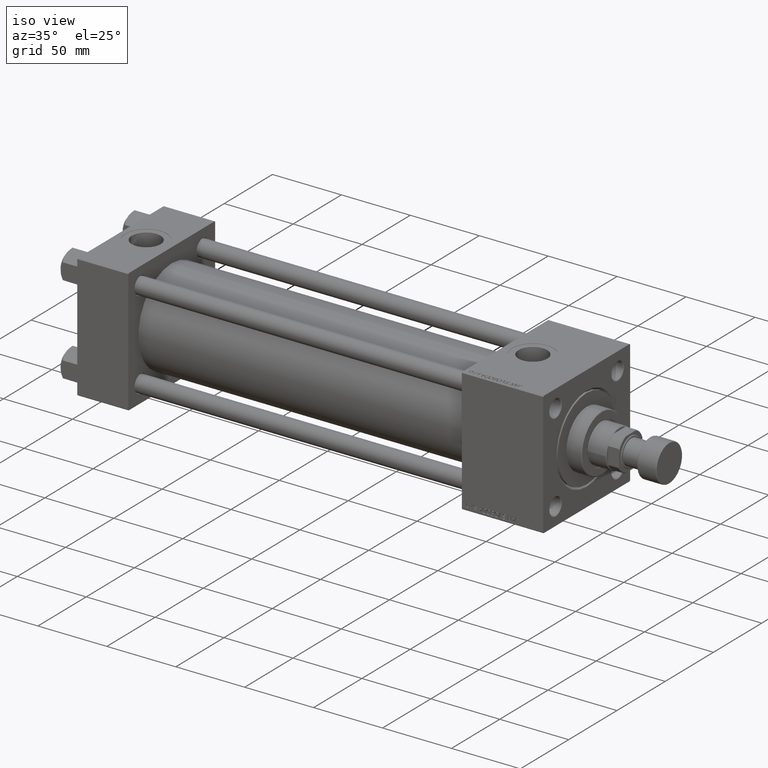
[diagram: clean part render]
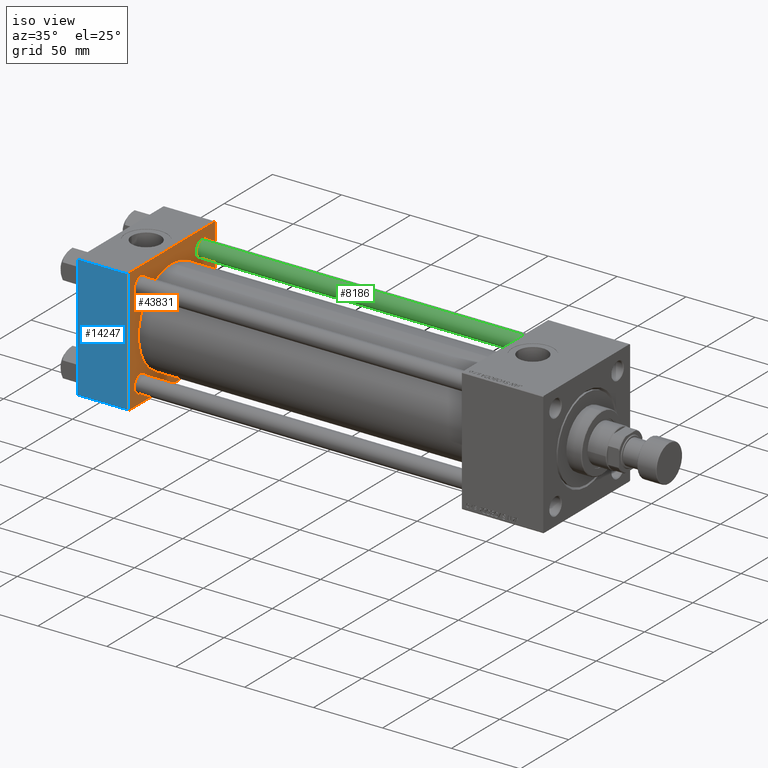
[diagram: same view with three faces highlighted in distinct colors, each labeled with its STEP entity id]
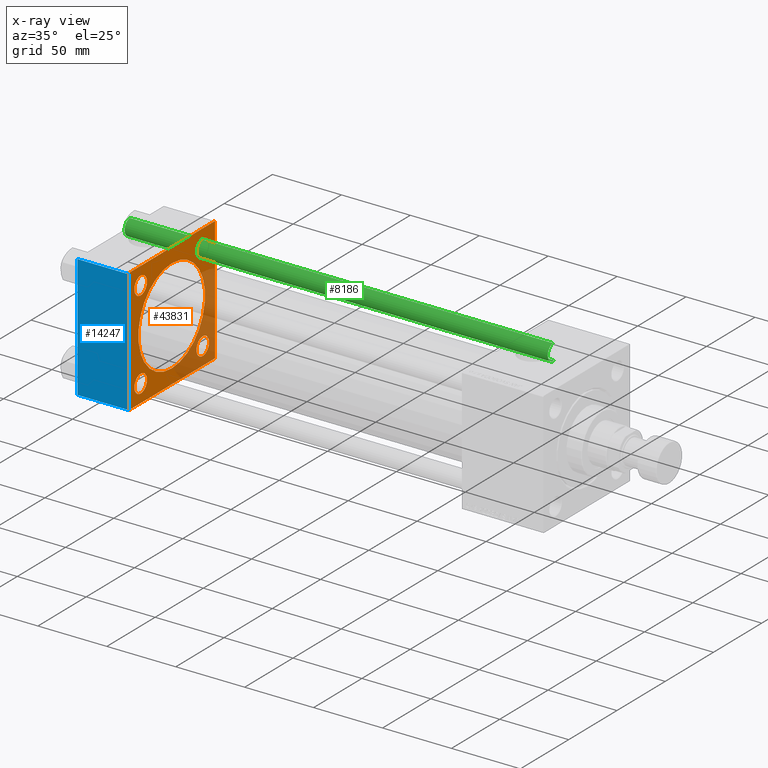
[diagram: x-ray of the same camera — body ghosted, the three highlighted faces saturated]
A machine part, iso view with three faces highlighted in distinct colors.
The next image is the same camera in x-ray (body ghosted, the three faces saturated) — at least one of them is partly hidden behind the body in this view.
Their STEP definitions:

[orange] entity #43831 — the highlighted planar face has unit normal (-1, 0, 0).
#5 = CARTESIAN_POINT ( 'NONE',  ( 37.00000000000000000, 32.14999999999999147, 25.65000000000002700 ) ) ;
#51 = DIRECTION ( 'NONE',  ( 1.000000000000000000, -0.000000000000000000, 0.000000000000000000 ) ) ;
#752 = VECTOR ( 'NONE', #18571, 1000.000000000000000 ) ;
#1021 = CIRCLE ( 'NONE', #39390, 6.499999999999977796 ) ;
#1183 = CARTESIAN_POINT ( 'NONE',  ( 37.00000000000000000, 32.14999999999999147, -32.15000000000000568 ) ) ;
#1648 = DIRECTION ( 'NONE',  ( -1.000000000000000000, 0.000000000000000000, -0.000000000000000000 ) ) ;
#2131 = DIRECTION ( 'NONE',  ( -1.000000000000000000, 0.000000000000000000, -0.000000000000000000 ) ) ;
#2388 = EDGE_CURVE ( 'NONE', #17870, #33335, #25803, .T. ) ;
#2611 = AXIS2_PLACEMENT_3D ( 'NONE', #35283, #8484, #23008 ) ;
#3019 = ORIENTED_EDGE ( 'NONE', *, *, #7058, .T. ) ;
#3759 = EDGE_CURVE ( 'NONE', #4550, #30125, #5063, .T. ) ;
#3771 = DIRECTION ( 'NONE',  ( 0.000000000000000000, -0.7071067811865474617, 0.7071067811865474617 ) ) ;
#4025 = CARTESIAN_POINT ( 'NONE',  ( 37.00000000000000000, -45.00000000000000711, 44.49999999999997158 ) ) ;
#4340 = FACE_BOUND ( 'NONE', #21590, .T. ) ;
#4550 = VERTEX_POINT ( 'NONE', #5 ) ;
#5063 = CIRCLE ( 'NONE', #34873, 6.499999999999977796 ) ;
#5167 = VERTEX_POINT ( 'NONE', #20835 ) ;
#5248 = CIRCLE ( 'NONE', #37679, 34.50000000000000000 ) ;
#5287 = CARTESIAN_POINT ( 'NONE',  ( 37.00000000000000000, 44.99999999999998579, -44.49999999999995737 ) ) ;
#5572 = LINE ( 'NONE', #34901, #27666 ) ;
#6142 = VECTOR ( 'NONE', #45239, 1000.000000000000000 ) ;
#6192 = VECTOR ( 'NONE', #3771, 1000.000000000000114 ) ;
#6536 = VERTEX_POINT ( 'NONE', #46031 ) ;
#6614 = EDGE_LOOP ( 'NONE', ( #22205, #36501 ) ) ;
#7058 = EDGE_CURVE ( 'NONE', #24643, #17996, #41820, .T. ) ;
#8366 = DIRECTION ( 'NONE',  ( -1.000000000000000000, 0.000000000000000000, -0.000000000000000000 ) ) ;
#8484 = DIRECTION ( 'NONE',  ( -1.000000000000000000, 0.000000000000000000, -0.000000000000000000 ) ) ;
#8943 = AXIS2_PLACEMENT_3D ( 'NONE', #18690, #39513, #22705 ) ;
#9079 = DIRECTION ( 'NONE',  ( 0.000000000000000000, 0.000000000000000000, 1.000000000000000000 ) ) ;
#10045 = CARTESIAN_POINT ( 'NONE',  ( 37.00000000000000000, 32.14999999999999147, -38.64999999999998437 ) ) ;
#11977 = DIRECTION ( 'NONE',  ( -0.000000000000000000, 0.000000000000000000, 1.000000000000000000 ) ) ;
#11982 = EDGE_CURVE ( 'NONE', #29960, #48354, #16563, .T. ) ;
#12205 = CARTESIAN_POINT ( 'NONE',  ( 37.00000000000000000, -44.49999999999998579, -45.00000000000000000 ) ) ;
#12347 = FACE_OUTER_BOUND ( 'NONE', #25270, .T. ) ;
#12663 = LINE ( 'NONE', #28969, #6142 ) ;
#13080 = DIRECTION ( 'NONE',  ( 1.000000000000000000, -0.000000000000000000, 0.000000000000000000 ) ) ;
#13205 = ORIENTED_EDGE ( 'NONE', *, *, #11982, .T. ) ;
#13905 = EDGE_CURVE ( 'NONE', #29960, #22339, #12663, .T. ) ;
#14042 = CARTESIAN_POINT ( 'NONE',  ( 37.00000000000000000, 44.99999999999998579, 45.00000000000001421 ) ) ;
#14855 = CARTESIAN_POINT ( 'NONE',  ( 37.00000000000000000, 32.14999999999999147, 32.15000000000000568 ) ) ;
#15314 = EDGE_CURVE ( 'NONE', #17996, #24643, #40301, .T. ) ;
#15568 = AXIS2_PLACEMENT_3D ( 'NONE', #29909, #2131, #42685 ) ;
#16327 = CARTESIAN_POINT ( 'NONE',  ( 37.00000000000000000, -44.49999999999995737, 45.00000000000000000 ) ) ;
#16563 = LINE ( 'NONE', #33636, #34197 ) ;
#17093 = LINE ( 'NONE', #4025, #20530 ) ;
#17216 = VERTEX_POINT ( 'NONE', #20755 ) ;
#17416 = FACE_BOUND ( 'NONE', #52543, .T. ) ;
#17432 = AXIS2_PLACEMENT_3D ( 'NONE', #1183, #26250, #26513 ) ;
#17870 = VERTEX_POINT ( 'NONE', #51264 ) ;
#17996 = VERTEX_POINT ( 'NONE', #30736 ) ;
#18523 = ORIENTED_EDGE ( 'NONE', *, *, #3759, .T. ) ;
#18571 = DIRECTION ( 'NONE',  ( 0.000000000000000000, -1.000000000000000000, -1.541976423090495387E-16 ) ) ;
#18690 = CARTESIAN_POINT ( 'NONE',  ( 37.00000000000000000, 32.14999999999999147, -32.15000000000000568 ) ) ;
#18708 = ORIENTED_EDGE ( 'NONE', *, *, #34707, .F. ) ;
#18930 = CIRCLE ( 'NONE', #30855, 6.499999999999977796 ) ;
#19056 = VERTEX_POINT ( 'NONE', #43825 ) ;
#20067 = CARTESIAN_POINT ( 'NONE',  ( 37.00000000000000000, -44.49999999999995737, -45.00000000000000000 ) ) ;
#20530 = VECTOR ( 'NONE', #32855, 1000.000000000000114 ) ;
#20755 = CARTESIAN_POINT ( 'NONE',  ( 37.00000000000000000, -45.00000000000000711, 44.49999999999997158 ) ) ;
#20835 = CARTESIAN_POINT ( 'NONE',  ( 37.00000000000000711, 1.622946243093158675E-15, -34.50000000000000000 ) ) ;
#21590 = EDGE_LOOP ( 'NONE', ( #45446, #26808 ) ) ;
#21694 = DIRECTION ( 'NONE',  ( 0.000000000000000000, 7.709882115452476934E-17, -1.000000000000000000 ) ) ;
#22205 = ORIENTED_EDGE ( 'NONE', *, *, #45624, .F. ) ;
#22339 = VERTEX_POINT ( 'NONE', #20067 ) ;
#22705 = DIRECTION ( 'NONE',  ( 0.000000000000000000, 0.000000000000000000, 1.000000000000000000 ) ) ;
#22727 = VERTEX_POINT ( 'NONE', #10045 ) ;
#23008 = DIRECTION ( 'NONE',  ( 0.000000000000000000, 0.000000000000000000, 1.000000000000000000 ) ) ;
#23410 = DIRECTION ( 'NONE',  ( 0.000000000000000000, 0.000000000000000000, 1.000000000000000000 ) ) ;
#23816 = CARTESIAN_POINT ( 'NONE',  ( 37.00000000000000711, -2.602085213965210642E-15, 0.000000000000000000 ) ) ;
#24063 = ORIENTED_EDGE ( 'NONE', *, *, #40798, .T. ) ;
#24225 = CARTESIAN_POINT ( 'NONE',  ( 37.00000000000000000, -45.00000000000000000, -44.49999999999995737 ) ) ;
#24643 = VERTEX_POINT ( 'NONE', #39326 ) ;
#24652 = DIRECTION ( 'NONE',  ( 0.000000000000000000, 0.000000000000000000, 1.000000000000000000 ) ) ;
#25269 = CARTESIAN_POINT ( 'NONE',  ( 37.00000000000000000, -32.14999999999997726, -38.64999999999999147 ) ) ;
#25270 = EDGE_LOOP ( 'NONE', ( #51239, #13205, #18708, #51159, #27081, #45213, #45818, #24063 ) ) ;
#25803 = LINE ( 'NONE', #14042, #752 ) ;
#26250 = DIRECTION ( 'NONE',  ( -1.000000000000000000, 0.000000000000000000, -0.000000000000000000 ) ) ;
#26339 = EDGE_CURVE ( 'NONE', #33335, #17216, #17093, .T. ) ;
#26513 = DIRECTION ( 'NONE',  ( 0.000000000000000000, 0.000000000000000000, 1.000000000000000000 ) ) ;
#26808 = ORIENTED_EDGE ( 'NONE', *, *, #29791, .T. ) ;
#26871 = DIRECTION ( 'NONE',  ( -1.000000000000000000, 0.000000000000000000, -0.000000000000000000 ) ) ;
#26919 = VECTOR ( 'NONE', #41038, 1000.000000000000114 ) ;
#27081 = ORIENTED_EDGE ( 'NONE', *, *, #2388, .T. ) ;
#27395 = CARTESIAN_POINT ( 'NONE',  ( 37.00000000000000711, -2.602085213965210642E-15, 34.50000000000000000 ) ) ;
#27504 = PLANE ( 'NONE',  #52580 ) ;
#27660 = AXIS2_PLACEMENT_3D ( 'NONE', #23816, #51, #28356 ) ;
#27666 = VECTOR ( 'NONE', #51179, 1000.000000000000000 ) ;
#27927 = VERTEX_POINT ( 'NONE', #24225 ) ;
#28058 = LINE ( 'NONE', #44859, #6192 ) ;
#28274 = CIRCLE ( 'NONE', #51262, 6.499999999999977796 ) ;
#28356 = DIRECTION ( 'NONE',  ( 0.000000000000000000, 0.000000000000000000, 1.000000000000000000 ) ) ;
#28834 = ORIENTED_EDGE ( 'NONE', *, *, #39173, .T. ) ;
#28969 = CARTESIAN_POINT ( 'NONE',  ( 37.00000000000000000, 44.99999999999998579, -44.99999999999998579 ) ) ;
#29077 = DIRECTION ( 'NONE',  ( -1.000000000000000000, 0.000000000000000000, -0.000000000000000000 ) ) ;
#29176 = CARTESIAN_POINT ( 'NONE',  ( 37.00000000000000000, -45.00000000000000711, 45.00000000000000000 ) ) ;
#29287 = VERTEX_POINT ( 'NONE', #27395 ) ;
#29470 = CARTESIAN_POINT ( 'NONE',  ( 37.00000000000000000, -32.14999999999997726, -32.15000000000001279 ) ) ;
#29777 = EDGE_CURVE ( 'NONE', #17216, #27927, #37707, .T. ) ;
#29791 = EDGE_CURVE ( 'NONE', #6536, #41704, #18930, .T. ) ;
#29909 = CARTESIAN_POINT ( 'NONE',  ( 37.00000000000000000, -32.14999999999997726, 32.15000000000001279 ) ) ;
#29960 = VERTEX_POINT ( 'NONE', #31019 ) ;
#30125 = VERTEX_POINT ( 'NONE', #44594 ) ;
#30172 = EDGE_CURVE ( 'NONE', #19056, #17870, #28058, .T. ) ;
#30736 = CARTESIAN_POINT ( 'NONE',  ( 37.00000000000000000, -32.14999999999997726, 38.64999999999999147 ) ) ;
#30855 = AXIS2_PLACEMENT_3D ( 'NONE', #45707, #1648, #49702 ) ;
#31019 = CARTESIAN_POINT ( 'NONE',  ( 37.00000000000000000, 44.49999999999998579, -44.99999999999998579 ) ) ;
#32794 = CIRCLE ( 'NONE', #8943, 6.499999999999977796 ) ;
#32855 = DIRECTION ( 'NONE',  ( -0.000000000000000000, -0.7071067811865425767, -0.7071067811865524577 ) ) ;
#33135 = ORIENTED_EDGE ( 'NONE', *, *, #38640, .T. ) ;
#33335 = VERTEX_POINT ( 'NONE', #16327 ) ;
#33441 = FACE_BOUND ( 'NONE', #36215, .T. ) ;
#33636 = CARTESIAN_POINT ( 'NONE',  ( 37.00000000000000000, 44.99999999999998579, -44.49999999999998579 ) ) ;
#34197 = VECTOR ( 'NONE', #49898, 1000.000000000000114 ) ;
#34707 = EDGE_CURVE ( 'NONE', #19056, #48354, #5572, .T. ) ;
#34873 = AXIS2_PLACEMENT_3D ( 'NONE', #45083, #29077, #45354 ) ;
#34901 = CARTESIAN_POINT ( 'NONE',  ( 37.00000000000000000, 44.99999999999998579, 45.00000000000001421 ) ) ;
#35283 = CARTESIAN_POINT ( 'NONE',  ( 37.00000000000000000, -32.14999999999997726, 32.15000000000001279 ) ) ;
#36181 = CIRCLE ( 'NONE', #27660, 34.50000000000000000 ) ;
#36215 = EDGE_LOOP ( 'NONE', ( #33135, #28834 ) ) ;
#36501 = ORIENTED_EDGE ( 'NONE', *, *, #37988, .F. ) ;
#36811 = DIRECTION ( 'NONE',  ( -1.000000000000000000, 0.000000000000000000, -0.000000000000000000 ) ) ;
#37679 = AXIS2_PLACEMENT_3D ( 'NONE', #45646, #13080, #9079 ) ;
#37707 = LINE ( 'NONE', #29176, #51292 ) ;
#37988 = EDGE_CURVE ( 'NONE', #5167, #29287, #36181, .T. ) ;
#37999 = ORIENTED_EDGE ( 'NONE', *, *, #45833, .T. ) ;
#38640 = EDGE_CURVE ( 'NONE', #22727, #41940, #32794, .T. ) ;
#39173 = EDGE_CURVE ( 'NONE', #41940, #22727, #51521, .T. ) ;
#39326 = CARTESIAN_POINT ( 'NONE',  ( 37.00000000000000000, -32.14999999999997726, 25.65000000000003411 ) ) ;
#39390 = AXIS2_PLACEMENT_3D ( 'NONE', #29470, #8366, #24652 ) ;
#39513 = DIRECTION ( 'NONE',  ( -1.000000000000000000, 0.000000000000000000, -0.000000000000000000 ) ) ;
#40027 = CARTESIAN_POINT ( 'NONE',  ( 37.00000000000000000, 0.000000000000000000, 0.000000000000000000 ) ) ;
#40301 = CIRCLE ( 'NONE', #15568, 6.499999999999977796 ) ;
#40798 = EDGE_CURVE ( 'NONE', #27927, #22339, #45034, .T. ) ;
#41038 = DIRECTION ( 'NONE',  ( 0.000000000000000000, 0.7071067811865474617, -0.7071067811865474617 ) ) ;
#41704 = VERTEX_POINT ( 'NONE', #25269 ) ;
#41820 = CIRCLE ( 'NONE', #2611, 6.499999999999977796 ) ;
#41940 = VERTEX_POINT ( 'NONE', #48960 ) ;
#42685 = DIRECTION ( 'NONE',  ( 0.000000000000000000, 0.000000000000000000, 1.000000000000000000 ) ) ;
#43825 = CARTESIAN_POINT ( 'NONE',  ( 37.00000000000000000, 44.99999999999998579, 44.50000000000001421 ) ) ;
#43831 = ADVANCED_FACE ( 'NONE', ( #4340, #33441, #45706, #17416, #48921, #12347 ), #27504, .F. ) ;
#44152 = ORIENTED_EDGE ( 'NONE', *, *, #15314, .T. ) ;
#44594 = CARTESIAN_POINT ( 'NONE',  ( 37.00000000000000000, 32.14999999999999147, 38.64999999999998437 ) ) ;
#44859 = CARTESIAN_POINT ( 'NONE',  ( 37.00000000000000000, 44.49999999999998579, 45.00000000000001421 ) ) ;
#45034 = LINE ( 'NONE', #12205, #26919 ) ;
#45083 = CARTESIAN_POINT ( 'NONE',  ( 37.00000000000000000, 32.14999999999999147, 32.15000000000000568 ) ) ;
#45213 = ORIENTED_EDGE ( 'NONE', *, *, #26339, .T. ) ;
#45239 = DIRECTION ( 'NONE',  ( 0.000000000000000000, -1.000000000000000000, -1.541976423090495633E-16 ) ) ;
#45300 = EDGE_LOOP ( 'NONE', ( #3019, #44152 ) ) ;
#45354 = DIRECTION ( 'NONE',  ( 0.000000000000000000, 0.000000000000000000, 1.000000000000000000 ) ) ;
#45446 = ORIENTED_EDGE ( 'NONE', *, *, #50150, .T. ) ;
#45624 = EDGE_CURVE ( 'NONE', #29287, #5167, #5248, .T. ) ;
#45646 = CARTESIAN_POINT ( 'NONE',  ( 37.00000000000000711, -2.602085213965210642E-15, 0.000000000000000000 ) ) ;
#45706 = FACE_BOUND ( 'NONE', #45300, .T. ) ;
#45707 = CARTESIAN_POINT ( 'NONE',  ( 37.00000000000000000, -32.14999999999997726, -32.15000000000001279 ) ) ;
#45818 = ORIENTED_EDGE ( 'NONE', *, *, #29777, .T. ) ;
#45833 = EDGE_CURVE ( 'NONE', #30125, #4550, #28274, .T. ) ;
#46031 = CARTESIAN_POINT ( 'NONE',  ( 37.00000000000000000, -32.14999999999997726, -25.65000000000003411 ) ) ;
#48354 = VERTEX_POINT ( 'NONE', #5287 ) ;
#48921 = FACE_BOUND ( 'NONE', #6614, .T. ) ;
#48960 = CARTESIAN_POINT ( 'NONE',  ( 37.00000000000000000, 32.14999999999999147, -25.65000000000002700 ) ) ;
#49702 = DIRECTION ( 'NONE',  ( 0.000000000000000000, 0.000000000000000000, 1.000000000000000000 ) ) ;
#49898 = DIRECTION ( 'NONE',  ( -0.000000000000000000, 0.7071067811865474617, 0.7071067811865474617 ) ) ;
#50150 = EDGE_CURVE ( 'NONE', #41704, #6536, #1021, .T. ) ;
#51159 = ORIENTED_EDGE ( 'NONE', *, *, #30172, .T. ) ;
#51179 = DIRECTION ( 'NONE',  ( 0.000000000000000000, 0.000000000000000000, -1.000000000000000000 ) ) ;
#51239 = ORIENTED_EDGE ( 'NONE', *, *, #13905, .F. ) ;
#51262 = AXIS2_PLACEMENT_3D ( 'NONE', #14855, #26871, #23410 ) ;
#51264 = CARTESIAN_POINT ( 'NONE',  ( 37.00000000000000000, 44.49999999999998579, 45.00000000000001421 ) ) ;
#51292 = VECTOR ( 'NONE', #21694, 1000.000000000000000 ) ;
#51521 = CIRCLE ( 'NONE', #17432, 6.499999999999977796 ) ;
#52543 = EDGE_LOOP ( 'NONE', ( #18523, #37999 ) ) ;
#52580 = AXIS2_PLACEMENT_3D ( 'NONE', #40027, #36811, #11977 ) ;

[blue] entity #14247 — the highlighted planar face has unit normal (0, 1, 0).
#1090 = CARTESIAN_POINT ( 'NONE',  ( 0.000000000000000000, -45.00000000000000000, -44.49999999999995737 ) ) ;
#3436 = DIRECTION ( 'NONE',  ( 0.000000000000000000, 7.709882115452476934E-17, -1.000000000000000000 ) ) ;
#3637 = EDGE_CURVE ( 'NONE', #17216, #11527, #21918, .T. ) ;
#3819 = ORIENTED_EDGE ( 'NONE', *, *, #29777, .F. ) ;
#5881 = DIRECTION ( 'NONE',  ( -1.000000000000000000, 0.000000000000000000, 0.000000000000000000 ) ) ;
#8473 = VECTOR ( 'NONE', #9610, 1000.000000000000000 ) ;
#9610 = DIRECTION ( 'NONE',  ( 1.000000000000000000, 0.000000000000000000, 0.000000000000000000 ) ) ;
#10464 = EDGE_CURVE ( 'NONE', #11527, #23276, #39753, .T. ) ;
#11527 = VERTEX_POINT ( 'NONE', #26999 ) ;
#11857 = VECTOR ( 'NONE', #5881, 1000.000000000000000 ) ;
#14139 = LINE ( 'NONE', #18670, #8473 ) ;
#14247 = ADVANCED_FACE ( 'NONE', ( #26211 ), #38213, .F. ) ;
#14421 = CARTESIAN_POINT ( 'NONE',  ( 37.00000000000000000, -45.00000000000000711, 44.49999999999997158 ) ) ;
#17216 = VERTEX_POINT ( 'NONE', #20755 ) ;
#18670 = CARTESIAN_POINT ( 'NONE',  ( 37.00000000000000000, -45.00000000000000000, -44.49999999999998579 ) ) ;
#19203 = CARTESIAN_POINT ( 'NONE',  ( 0.000000000000000000, -45.00000000000000711, 45.00000000000000000 ) ) ;
#20755 = CARTESIAN_POINT ( 'NONE',  ( 37.00000000000000000, -45.00000000000000711, 44.49999999999997158 ) ) ;
#21694 = DIRECTION ( 'NONE',  ( 0.000000000000000000, 7.709882115452476934E-17, -1.000000000000000000 ) ) ;
#21918 = LINE ( 'NONE', #14421, #11857 ) ;
#22432 = EDGE_CURVE ( 'NONE', #23276, #27927, #14139, .T. ) ;
#23276 = VERTEX_POINT ( 'NONE', #1090 ) ;
#24225 = CARTESIAN_POINT ( 'NONE',  ( 37.00000000000000000, -45.00000000000000000, -44.49999999999995737 ) ) ;
#25956 = DIRECTION ( 'NONE',  ( 0.000000000000000000, -7.709882115452478166E-17, 1.000000000000000000 ) ) ;
#26211 = FACE_OUTER_BOUND ( 'NONE', #52712, .T. ) ;
#26999 = CARTESIAN_POINT ( 'NONE',  ( 0.000000000000000000, -45.00000000000000711, 44.49999999999997158 ) ) ;
#27927 = VERTEX_POINT ( 'NONE', #24225 ) ;
#29176 = CARTESIAN_POINT ( 'NONE',  ( 37.00000000000000000, -45.00000000000000711, 45.00000000000000000 ) ) ;
#29777 = EDGE_CURVE ( 'NONE', #17216, #27927, #37707, .T. ) ;
#34961 = ORIENTED_EDGE ( 'NONE', *, *, #22432, .T. ) ;
#37707 = LINE ( 'NONE', #29176, #51292 ) ;
#37880 = ORIENTED_EDGE ( 'NONE', *, *, #10464, .T. ) ;
#38213 = PLANE ( 'NONE',  #49616 ) ;
#39753 = LINE ( 'NONE', #19203, #41813 ) ;
#41813 = VECTOR ( 'NONE', #3436, 1000.000000000000000 ) ;
#45348 = ORIENTED_EDGE ( 'NONE', *, *, #3637, .T. ) ;
#45705 = DIRECTION ( 'NONE',  ( -0.000000000000000000, 1.000000000000000000, 7.709882115452478166E-17 ) ) ;
#46488 = CARTESIAN_POINT ( 'NONE',  ( 37.00000000000000000, -45.00000000000000711, 45.00000000000000000 ) ) ;
#49616 = AXIS2_PLACEMENT_3D ( 'NONE', #46488, #45705, #25956 ) ;
#51292 = VECTOR ( 'NONE', #21694, 1000.000000000000000 ) ;
#52712 = EDGE_LOOP ( 'NONE', ( #37880, #34961, #3819, #45348 ) ) ;

[green] entity #8186 — the highlighted cylindrical surface (edge-blend (fillet) strip) has radius 6 mm, axis along (-1, 0, 0).
#418 = EDGE_CURVE ( 'NONE', #16432, #20371, #40370, .T. ) ;
#3274 = CARTESIAN_POINT ( 'NONE',  ( 6.000000000000000888, 7.347880794884120722E-16, 308.0000000000000000 ) ) ;
#4070 = ORIENTED_EDGE ( 'NONE', *, *, #34052, .T. ) ;
#4710 = VECTOR ( 'NONE', #14758, 1000.000000000000000 ) ;
#6060 = EDGE_CURVE ( 'NONE', #25706, #16432, #12777, .T. ) ;
#8186 = ADVANCED_FACE ( 'NONE', ( #25872 ), #8797, .T. ) ;
#8797 = CYLINDRICAL_SURFACE ( 'NONE', #42691, 6.000000000000000888 ) ;
#9060 = DIRECTION ( 'NONE',  ( -1.000000000000000000, 0.000000000000000000, 0.000000000000000000 ) ) ;
#9577 = CARTESIAN_POINT ( 'NONE',  ( 0.000000000000000000, 0.000000000000000000, 308.0000000000000000 ) ) ;
#12777 = CIRCLE ( 'NONE', #32415, 6.000000000000000888 ) ;
#13498 = CARTESIAN_POINT ( 'NONE',  ( -6.000000000000000888, 0.000000000000000000, 307.4999999999999432 ) ) ;
#14758 = DIRECTION ( 'NONE',  ( -0.000000000000000000, -0.000000000000000000, -1.000000000000000000 ) ) ;
#15943 = DIRECTION ( 'NONE',  ( -0.000000000000000000, -0.000000000000000000, 1.000000000000000000 ) ) ;
#16432 = VERTEX_POINT ( 'NONE', #13498 ) ;
#17458 = DIRECTION ( 'NONE',  ( 1.000000000000000000, 0.000000000000000000, 0.000000000000000000 ) ) ;
#19362 = ORIENTED_EDGE ( 'NONE', *, *, #39313, .F. ) ;
#19990 = DIRECTION ( 'NONE',  ( 0.000000000000000000, 0.000000000000000000, -1.000000000000000000 ) ) ;
#20337 = DIRECTION ( 'NONE',  ( -0.000000000000000000, -0.000000000000000000, -1.000000000000000000 ) ) ;
#20371 = VERTEX_POINT ( 'NONE', #40807 ) ;
#20436 = ORIENTED_EDGE ( 'NONE', *, *, #6060, .T. ) ;
#20794 = AXIS2_PLACEMENT_3D ( 'NONE', #49476, #15943, #17458 ) ;
#25706 = VERTEX_POINT ( 'NONE', #51733 ) ;
#25872 = FACE_OUTER_BOUND ( 'NONE', #29755, .T. ) ;
#26963 = ORIENTED_EDGE ( 'NONE', *, *, #418, .T. ) ;
#28087 = CARTESIAN_POINT ( 'NONE',  ( -6.000000000000000888, 0.000000000000000000, 308.0000000000000000 ) ) ;
#28519 = DIRECTION ( 'NONE',  ( 1.000000000000000000, 0.000000000000000000, 0.000000000000000000 ) ) ;
#29473 = CARTESIAN_POINT ( 'NONE',  ( 6.000000000000000888, 7.347880794884120722E-16, 0.5000000000000559552 ) ) ;
#29755 = EDGE_LOOP ( 'NONE', ( #19362, #20436, #26963, #4070 ) ) ;
#32415 = AXIS2_PLACEMENT_3D ( 'NONE', #40000, #19990, #28519 ) ;
#34052 = EDGE_CURVE ( 'NONE', #20371, #49829, #43810, .T. ) ;
#39313 = EDGE_CURVE ( 'NONE', #25706, #49829, #51312, .T. ) ;
#40000 = CARTESIAN_POINT ( 'NONE',  ( 0.000000000000000000, 0.000000000000000000, 307.4999999999999432 ) ) ;
#40370 = LINE ( 'NONE', #28087, #44991 ) ;
#40807 = CARTESIAN_POINT ( 'NONE',  ( -6.000000000000000888, 0.000000000000000000, 0.5000000000000559552 ) ) ;
#42691 = AXIS2_PLACEMENT_3D ( 'NONE', #9577, #45363, #9060 ) ;
#43810 = CIRCLE ( 'NONE', #20794, 6.000000000000000888 ) ;
#44991 = VECTOR ( 'NONE', #20337, 1000.000000000000000 ) ;
#45363 = DIRECTION ( 'NONE',  ( -0.000000000000000000, -0.000000000000000000, -1.000000000000000000 ) ) ;
#49476 = CARTESIAN_POINT ( 'NONE',  ( 0.000000000000000000, 0.000000000000000000, 0.5000000000000559552 ) ) ;
#49829 = VERTEX_POINT ( 'NONE', #29473 ) ;
#51312 = LINE ( 'NONE', #3274, #4710 ) ;
#51733 = CARTESIAN_POINT ( 'NONE',  ( 6.000000000000000888, 7.347880794884120722E-16, 307.4999999999999432 ) ) ;